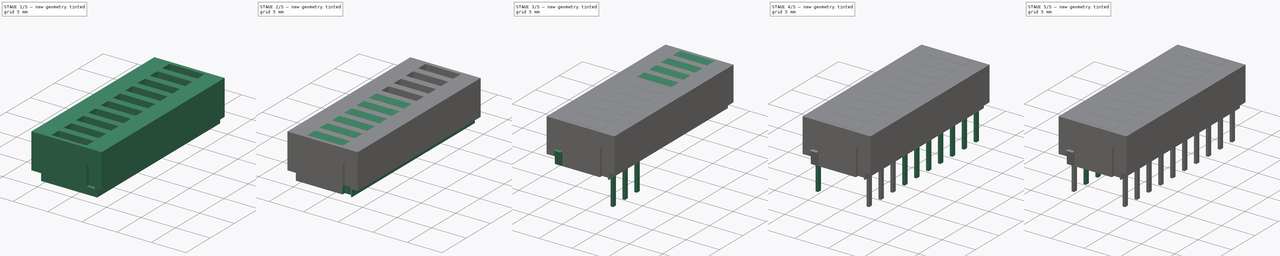
[diagram: build sequence overview — one tinted view per stage of 5, left to right]
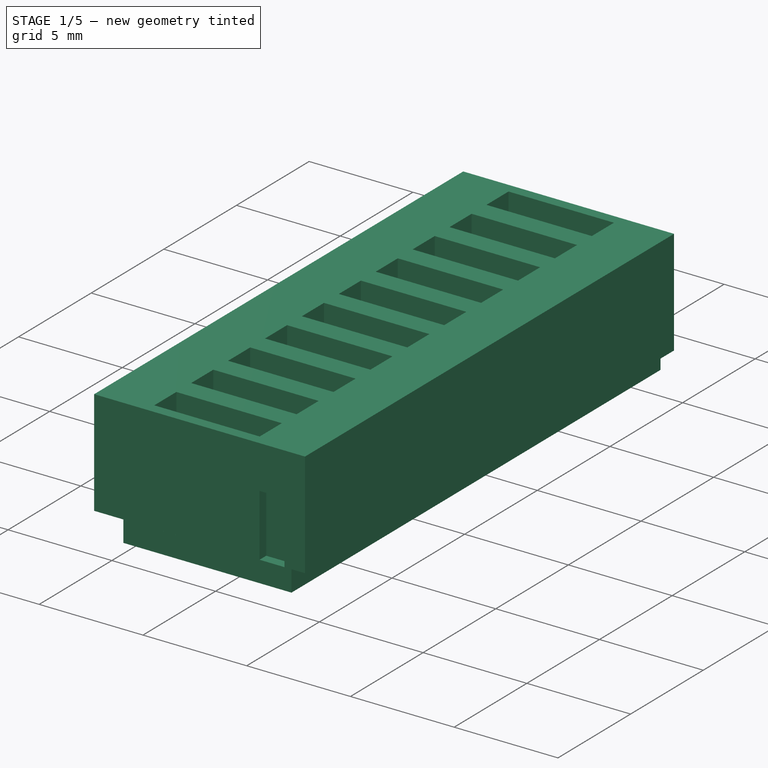
[diagram: stage 1 of 5 — iso view after this stage's code; geometry added in this stage tinted green]
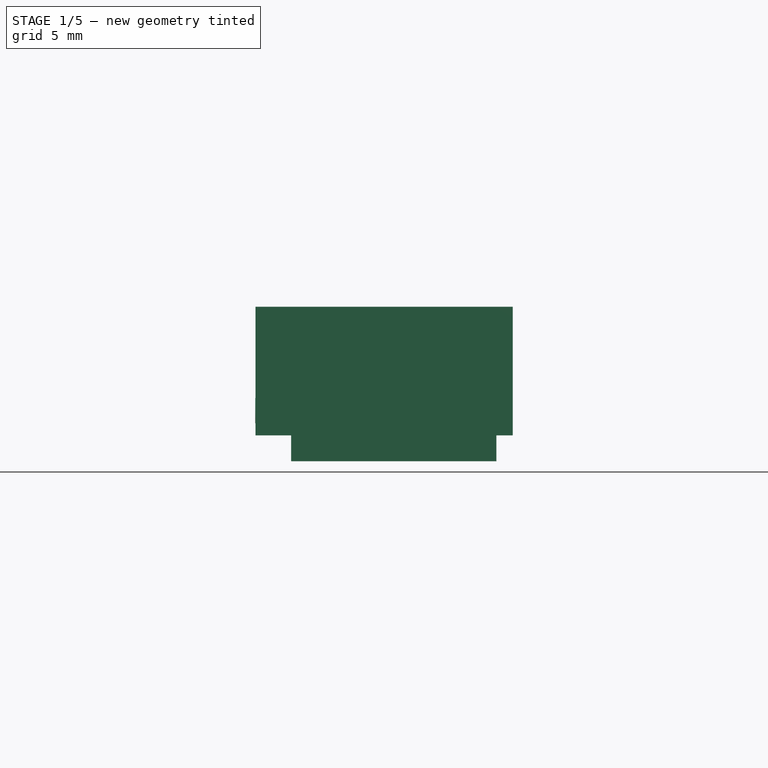
[diagram: stage 1 of 5 — front view after this stage's code; geometry added in this stage tinted green]
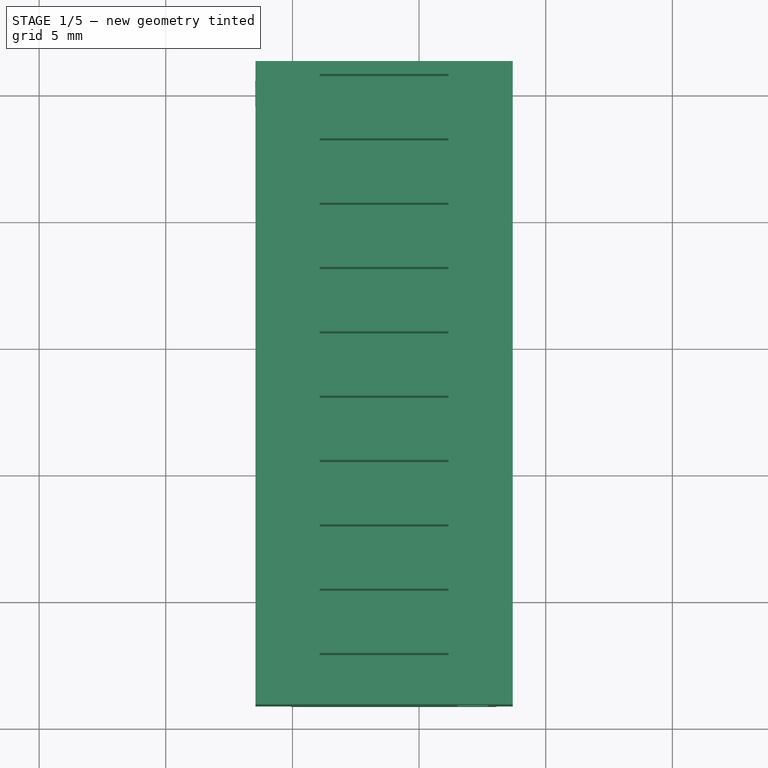
[diagram: stage 1 of 5 — top view after this stage's code; geometry added in this stage tinted green]
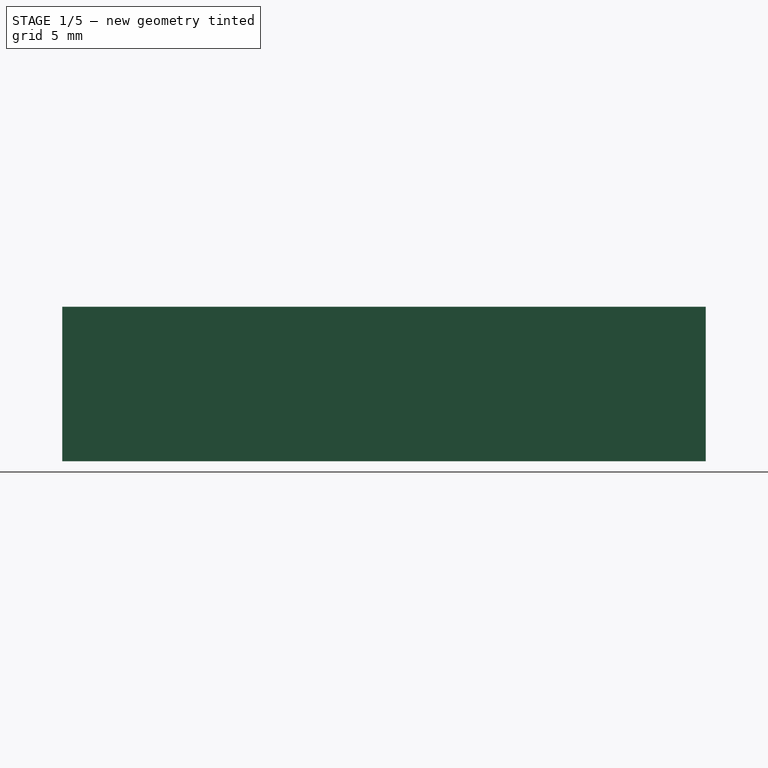
[diagram: stage 1 of 5 — right view after this stage's code; geometry added in this stage tinted green]
FCSTD DOCUMENT  (FreeCAD 0.17R11223 (Git))
Label: HDSP-48XX_8_1
License: All rights reserved
LicenseURL: http://en.wikipedia.org/wiki/All_rights_reserved
objects: Part::Box×37, Part::Cut×4, App::DocumentObjectGroup×2, Sketcher::SketchObject×1, PartDesign::Pad×1, PartDesign::Body×1, Part::Cylinder×1
note: 46 computed .brp shape members not serialized (recipe doc carries the construction recipe); baked Part::Feature solids carry a one-line shape summary decoded from their .brp

FEATURE [Sketcher::SketchObject] Sketch
  MapMode = 5
  Support = -> [XY_Plane]
  sketch-geometry (44):
    g0: LineSegment StartX=-1.27 StartY=1.27 StartZ=0 EndX=8.89 EndY=1.27 EndZ=0
    g1: LineSegment StartX=8.89 StartY=1.27 StartZ=0 EndX=8.89 EndY=-24.13 EndZ=0
    g2: LineSegment StartX=8.89 StartY=-24.13 StartZ=0 EndX=-1.27 EndY=-24.13 EndZ=0
    g3: LineSegment StartX=-1.27 StartY=-24.13 StartZ=0 EndX=-1.27 EndY=1.27 EndZ=0
    g4: LineSegment StartX=1.27 StartY=0.76 StartZ=0 EndX=6.35 EndY=0.76 EndZ=0
    g5: LineSegment StartX=6.35 StartY=0.76 StartZ=0 EndX=6.35 EndY=-0.76 EndZ=0
    g6: LineSegment StartX=6.35 StartY=-0.76 StartZ=0 EndX=1.27 EndY=-0.76 EndZ=0
    g7: LineSegment StartX=1.27 StartY=-0.76 StartZ=0 EndX=1.27 EndY=0.76 EndZ=0
    g8: LineSegment StartX=1.27 StartY=-1.78 StartZ=0 EndX=6.35 EndY=-1.78 EndZ=0
    g9: LineSegment StartX=6.35 StartY=-1.78 StartZ=0 EndX=6.35 EndY=-3.3 EndZ=0
    g10: LineSegment StartX=6.35 StartY=-3.3 StartZ=0 EndX=1.27 EndY=-3.3 EndZ=0
    g11: LineSegment StartX=1.27 StartY=-3.3 StartZ=0 EndX=1.27 EndY=-1.78 EndZ=0
    g12: LineSegment StartX=1.27 StartY=-4.32 StartZ=0 EndX=6.35 EndY=-4.32 EndZ=0
    g13: LineSegment StartX=6.35 StartY=-4.32 StartZ=0 EndX=6.35 EndY=-5.84 EndZ=0
    g14: LineSegment StartX=6.35 StartY=-5.84 StartZ=0 EndX=1.27 EndY=-5.84 EndZ=0
    g15: LineSegment StartX=1.27 StartY=-5.84 StartZ=0 EndX=1.27 EndY=-4.32 EndZ=0
    g16: LineSegment StartX=1.27 StartY=-8.38 StartZ=0 EndX=6.35 EndY=-8.38 EndZ=0
    g17: LineSegment StartX=6.35 StartY=-8.38 StartZ=0 EndX=6.35 EndY=-6.86 EndZ=0
    g18: LineSegment StartX=6.35 StartY=-6.86 StartZ=0 EndX=1.27 EndY=-6.86 EndZ=0
    g19: LineSegment StartX=1.27 StartY=-6.86 StartZ=0 EndX=1.27 EndY=-8.38 EndZ=0
    g20: LineSegment StartX=1.27 StartY=-9.4 StartZ=0 EndX=6.35 EndY=-9.4 EndZ=0
    g21: LineSegment StartX=6.35 StartY=-9.4 StartZ=0 EndX=6.35 EndY=-10.92 EndZ=0
    g22: LineSegment StartX=6.35 StartY=-10.92 StartZ=0 EndX=1.27 EndY=-10.92 EndZ=0
    g23: LineSegment StartX=1.27 StartY=-10.92 StartZ=0 EndX=1.27 EndY=-9.4 EndZ=0
    g24: LineSegment StartX=1.27 StartY=-11.94 StartZ=0 EndX=6.35 EndY=-11.94 EndZ=0
    g25: LineSegment StartX=6.35 StartY=-11.94 StartZ=0 EndX=6.35 EndY=-13.46 EndZ=0
    g26: LineSegment StartX=6.35 StartY=-13.46 StartZ=0 EndX=1.27 EndY=-13.46 EndZ=0
    g27: LineSegment StartX=1.27 StartY=-13.46 StartZ=0 EndX=1.27 EndY=-11.94 EndZ=0
    g28: LineSegment StartX=1.27 StartY=-14.48 StartZ=0 EndX=6.35 EndY=-14.48 EndZ=0
    g29: LineSegment StartX=6.35 StartY=-14.48 StartZ=0 EndX=6.35 EndY=-16 EndZ=0
    g30: LineSegment StartX=6.35 StartY=-16 StartZ=0 EndX=1.27 EndY=-16 EndZ=0
    g31: LineSegment StartX=1.27 StartY=-16 StartZ=0 EndX=1.27 EndY=-14.48 EndZ=0
    g32: LineSegment StartX=1.27 StartY=-17.02 StartZ=0 EndX=6.35 EndY=-17.02 EndZ=0
    g33: LineSegment StartX=6.35 StartY=-17.02 StartZ=0 EndX=6.35 EndY=-18.54 EndZ=0
    g34: LineSegment StartX=6.35 StartY=-18.54 StartZ=0 EndX=1.27 EndY=-18.54 EndZ=0
    g35: LineSegment StartX=1.27 StartY=-18.54 StartZ=0 EndX=1.27 EndY=-17.02 EndZ=0
    g36: LineSegment StartX=1.27 StartY=-19.56 StartZ=0 EndX=6.35 EndY=-19.56 EndZ=0
    g37: LineSegment StartX=6.35 StartY=-19.56 StartZ=0 EndX=6.35 EndY=-21.08 EndZ=0
    g38: LineSegment StartX=6.35 StartY=-21.08 StartZ=0 EndX=1.27 EndY=-21.08 EndZ=0
    g39: LineSegment StartX=1.27 StartY=-21.08 StartZ=0 EndX=1.27 EndY=-19.56 EndZ=0
    g40: LineSegment StartX=1.27 StartY=-22.1 StartZ=0 EndX=6.35 EndY=-22.1 EndZ=0
    g41: LineSegment StartX=6.35 StartY=-22.1 StartZ=0 EndX=6.35 EndY=-23.62 EndZ=0
    g42: LineSegment StartX=6.35 StartY=-23.62 StartZ=0 EndX=1.27 EndY=-23.62 EndZ=0
    g43: LineSegment StartX=1.27 StartY=-23.62 StartZ=0 EndX=1.27 EndY=-22.1 EndZ=0
  constraints (132):
    c: Coincident(g0,g1)
    c: Coincident(g1,g2)
    c: Coincident(g2,g3)
    c: Coincident(g3,g0)
    c: Horizontal(g0)
    c: Horizontal(g2)
    c: Vertical(g1)
    c: Vertical(g3)
    c: DistanceX(g0,g0) = 10.16
    c: DistanceY(g1,g0) = 25.4
    c: Coincident(g4,g5)
    c: Coincident(g5,g6)
    c: Coincident(g6,g7)
    c: Coincident(g7,g4)
    c: Horizontal(g4)
    c: Horizontal(g6)
    c: Vertical(g5)
    c: Vertical(g7)
    c: DistanceY(g5,g4) = 1.52
    c: DistanceX(g4,g4) = 5.08
    c: DistanceX(g0,g4) = 2.54
    c: DistanceX(g0,g-1) = 1.27
    c: DistanceY(g-1,g0) = 1.27
    c: DistanceY(g4,g0) = 0.51
    c: Coincident(g8,g9)
    c: Coincident(g9,g10)
    c: Coincident(g10,g11)
    c: Coincident(g11,g8)
    c: Horizontal(g8)
    c: Horizontal(g10)
    c: Vertical(g9)
    c: Vertical(g11)
    c: Coincident(g12,g13)
    c: Coincident(g13,g14)
    c: Coincident(g14,g15)
    c: Coincident(g15,g12)
    c: Horizontal(g12)
    c: Horizontal(g14)
    c: Vertical(g13)
    c: Vertical(g15)
    c: Coincident(g16,g17)
    c: Coincident(g17,g18)
    c: Coincident(g18,g19)
    c: Coincident(g19,g16)
    c: Horizontal(g16)
    c: Horizontal(g18)
    c: Vertical(g17)
    c: Vertical(g19)
    c: Coincident(g20,g21)
    c: Coincident(g21,g22)
    c: Coincident(g22,g23)
    c: Coincident(g23,g20)
    c: Horizontal(g20)
    c: Horizontal(g22)
    c: Vertical(g21)
    c: Vertical(g23)
    c: Coincident(g24,g25)
    c: Coincident(g25,g26)
    c: Coincident(g26,g27)
    c: Coincident(g27,g24)
    c: Horizontal(g24)
    c: Horizontal(g26)
    c: Vertical(g25)
    c: Vertical(g27)
    c: Coincident(g28,g29)
    c: Coincident(g29,g30)
    c: Coincident(g30,g31)
    c: Coincident(g31,g28)
    c: Horizontal(g28)
    c: Horizontal(g30)
    c: Vertical(g29)
    c: Vertical(g31)
    c: Coincident(g32,g33)
    c: Coincident(g33,g34)
    c: Coincident(g34,g35)
    c: Coincident(g35,g32)
    c: Horizontal(g32)
    c: Horizontal(g34)
    c: Vertical(g33)
    c: Vertical(g35)
    c: Coincident(g36,g37)
    c: Coincident(g37,g38)
    c: Coincident(g38,g39)
    c: Coincident(g39,g36)
    c: Horizontal(g36)
    c: Horizontal(g38)
    c: Vertical(g37)
    c: Vertical(g39)
    c: Coincident(g40,g41)
    c: Coincident(g41,g42)
    c: Coincident(g42,g43)
    c: Coincident(g43,g40)
    c: Horizontal(g40)
    c: Horizontal(g42)
    c: Vertical(g41)
    c: Vertical(g43)
    c: DistanceY(g40,g36) = 2.54
    c: DistanceY(g41,g40) = 1.52
    c: DistanceX(g40,g40) = 5.08
    c: DistanceX(g36,g36) = 5.08
    c: DistanceY(g37,g36) = 1.52
    c: DistanceX(g40,g36) = 0
    c: DistanceX(g32,g36) = 0
    c: DistanceY(g36,g32) = 2.54
    c: DistanceY(g33,g32) = 1.52
    c: DistanceX(g32,g32) = 5.08
    c: DistanceX(g28,g32) = 0
    c: DistanceY(g32,g28) = 2.54
    c: DistanceY(g29,g28) = 1.52
    c: DistanceX(g28,g28) = 5.08
    c: DistanceX(g24,g28) = 0
    c: DistanceY(g28,g24) = 2.54
    c: DistanceY(g25,g24) = 1.52
    c: DistanceX(g24,g24) = 5.08
    c: DistanceY(g24,g20) = 2.54
    c: DistanceX(g20,g24) = 0
    c: DistanceY(g21,g20) = 1.52
    c: DistanceX(g20,g20) = 5.08
    c: DistanceX(g16,g20) = 0
    c: DistanceY(g16,g17) = 1.52
    c: DistanceX(g18,g17) = 5.08
    c: DistanceX(g12,g18) = 0
    c: DistanceY(g18,g12) = 2.54
    c: DistanceY(g13,g12) = 1.52
    c: DistanceX(g12,g12) = 5.08
    c: DistanceY(g9,g8) = 1.52
    c: DistanceX(g8,g8) = 5.08
    c: DistanceX(g8,g12) = 0
    c: DistanceY(g12,g8) = 2.54
    c: DistanceX(g4,g8) = 0
    c: DistanceY(g8,g4) = 2.54
    c: DistanceY(g20,g18) = 2.54
FEATURE [PartDesign::Pad] Pad
  Length = 5.08
  Length2 = 100
  Profile = -> Sketch
  Type = 0
FEATURE [PartDesign::Body] Body
  Group = -> [Sketch,Pad]
  Origin = -> BodyOrigin
  Placement = pos=(0,0,1.02) rot=(0,0,1;0rad)
  Tip = -> Pad
FEATURE [Part::Box] Box  label="Underdel"
  AttacherType = Attacher::AttachEngine3D
  Height = 1.02
  Length = 8.1
  Placement = pos=(-0.05,-24.13,0) rot=(0,0,1;0rad)
  Width = 25.4
FEATURE [Part::Box] Box003  label="Slits1"
  AttacherType = Attacher::AttachEngine3D
  Height = 1.02
  Length = 1.2
  Placement = pos=(0.1,0.8,0) rot=(0,0,1;0rad)
  Width = 0.5
FEATURE [Part::Box] Box035  label="Slits003"
  AttacherType = Attacher::AttachEngine3D
  Height = 4
  Length = 1.2
  Placement = pos=(0.1,0.8,0) rot=(0,0,1;0rad)
  Width = 0.5
FEATURE [Part::Cut] Cut
  Base = -> Box
  Tool = -> Box003
FEATURE [Part::Box] Box036  label="Slits004"
  AttacherType = Attacher::AttachEngine3D
  Height = 3
  Length = 1.2
  Placement = pos=(6.7,-24.17,0) rot=(0,0,1;0rad)
  Width = 0.5
FEATURE [Part::Cut] Cut001
  Base = -> Pad
  Placement = pos=(0,0,1.02) rot=(0,0,1;0rad)
  Tool = -> Box036
FEATURE [Part::Cut] Cut003
  Base = -> Cut001
  Placement = pos=(-0.19,0,0) rot=(0,0,1;0rad)
  Tool = -> Box035
FEATURE [App::DocumentObjectGroup] Grupp001  label="Klackar"
  Group = -> [Box001,Box002,Cut002,Cut003]
FEATURE [Part::Cylinder] Cylinder
  Angle = 360
  AttacherType = Attacher::AttachEngine3D
  Height = 1
  Placement = pos=(-1.47,0.05,2) rot=(0,1,0;1.5708rad)
  Radius = 0.5
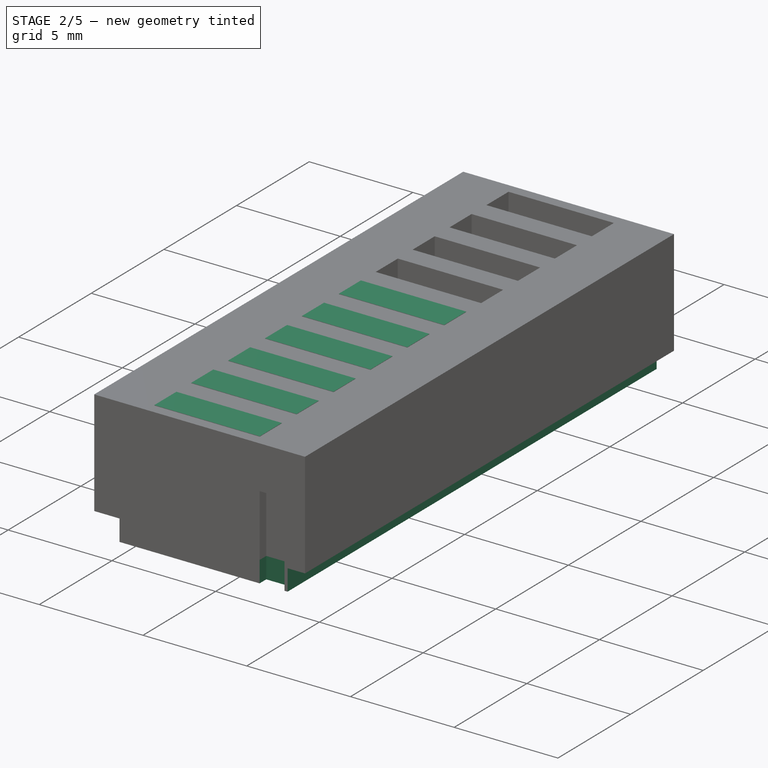
[diagram: stage 2 of 5 — iso view after this stage's code; geometry added in this stage tinted green]
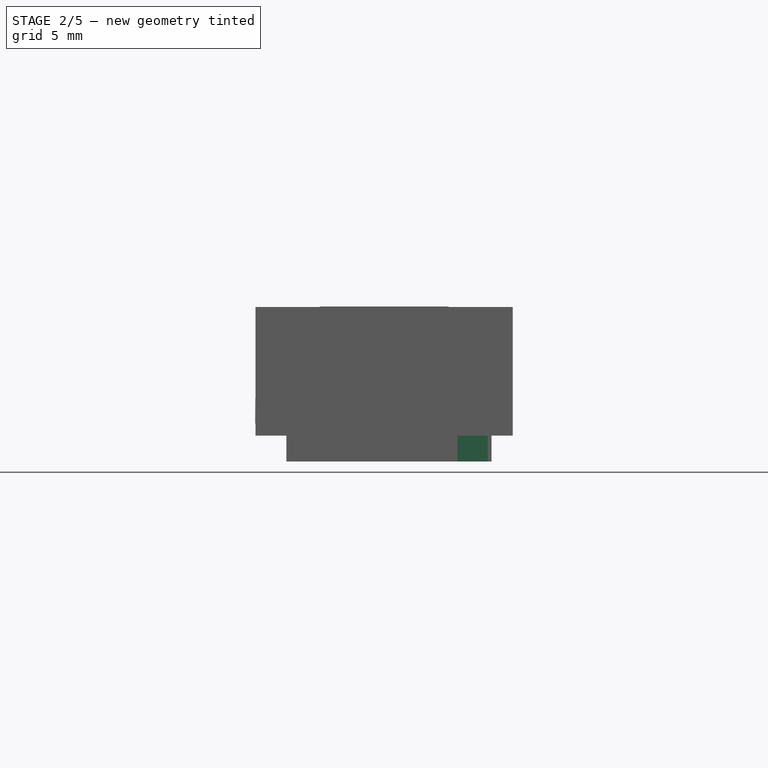
[diagram: stage 2 of 5 — front view after this stage's code; geometry added in this stage tinted green]
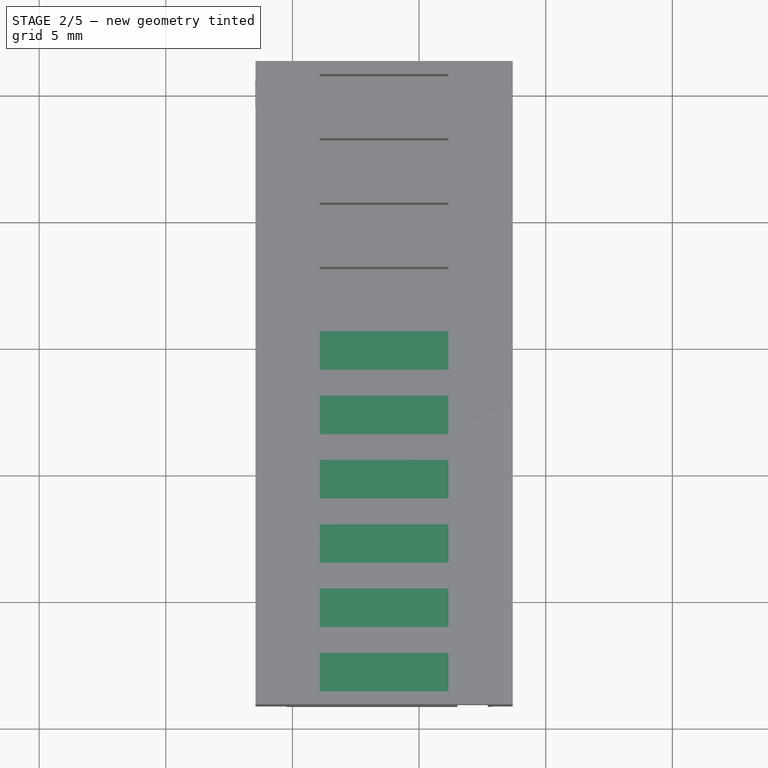
[diagram: stage 2 of 5 — top view after this stage's code; geometry added in this stage tinted green]
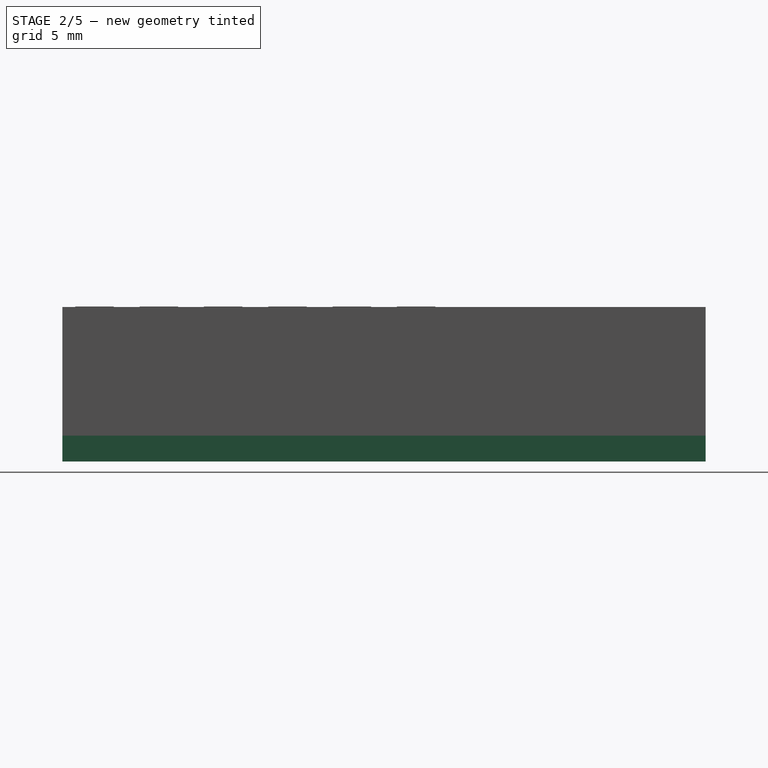
[diagram: stage 2 of 5 — right view after this stage's code; geometry added in this stage tinted green]
FEATURE [Part::Box] Box004  label="Slits2"
  AttacherType = Attacher::AttachEngine3D
  Height = 1.02
  Length = 1.2
  Placement = pos=(6.7,-24.17,0) rot=(0,0,1;0rad)
  Width = 0.5
FEATURE [Part::Box] Box029  label="LED005"
  AttacherType = Attacher::AttachEngine3D
  Height = 5.1
  Length = 5.08
  Placement = pos=(1.08,-10.92,1.02) rot=(0,0,1;0rad)
  Width = 1.52
FEATURE [Part::Box] Box030  label="LED006"
  AttacherType = Attacher::AttachEngine3D
  Height = 5.1
  Length = 5.08
  Placement = pos=(1.08,-13.46,1.02) rot=(0,0,1;0rad)
  Width = 1.52
FEATURE [Part::Box] Box031  label="LED007"
  AttacherType = Attacher::AttachEngine3D
  Height = 5.1
  Length = 5.08
  Placement = pos=(1.08,-16,1.02) rot=(0,0,1;0rad)
  Width = 1.52
FEATURE [Part::Box] Box032  label="LED008"
  AttacherType = Attacher::AttachEngine3D
  Height = 5.1
  Length = 5.08
  Placement = pos=(1.08,-18.54,1.02) rot=(0,0,1;0rad)
  Width = 1.52
FEATURE [Part::Box] Box033  label="LED009"
  AttacherType = Attacher::AttachEngine3D
  Height = 5.1
  Length = 5.08
  Placement = pos=(1.08,-21.08,1.02) rot=(0,0,1;0rad)
  Width = 1.52
FEATURE [Part::Box] Box034  label="LED010"
  AttacherType = Attacher::AttachEngine3D
  Height = 5.1
  Length = 5.08
  Placement = pos=(1.08,-23.62,1.02) rot=(0,0,1;0rad)
  Width = 1.52
FEATURE [Part::Cut] Cut002
  Base = -> Cut
  Placement = pos=(-0.19,0,0) rot=(0,0,1;0rad)
  Tool = -> Box004
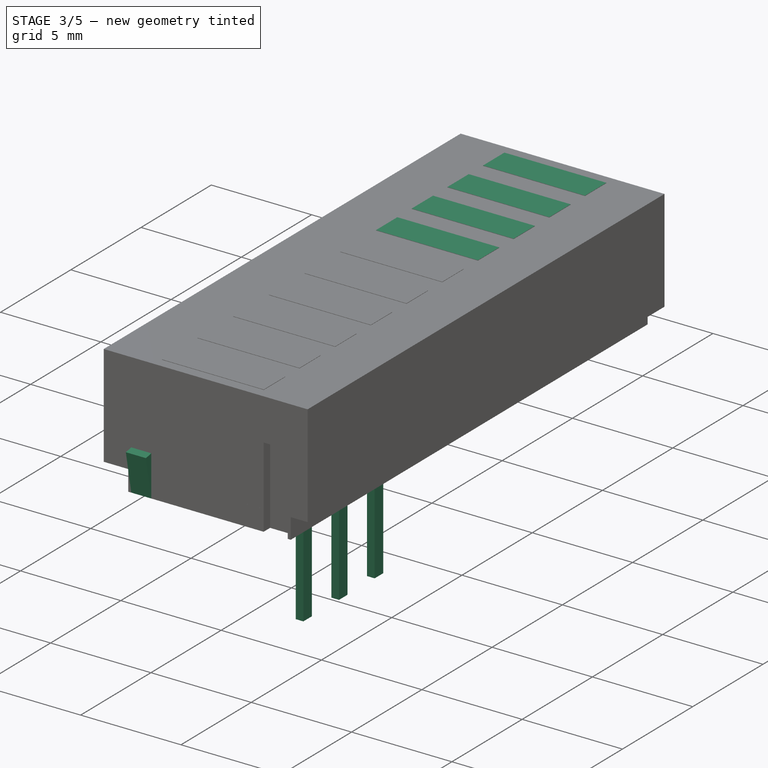
[diagram: stage 3 of 5 — iso view after this stage's code; geometry added in this stage tinted green]
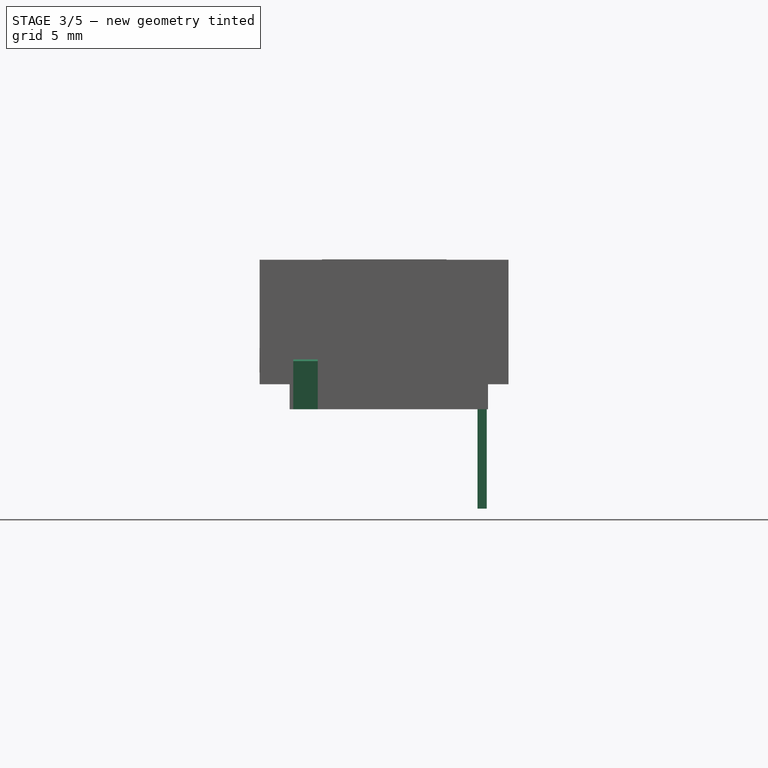
[diagram: stage 3 of 5 — front view after this stage's code; geometry added in this stage tinted green]
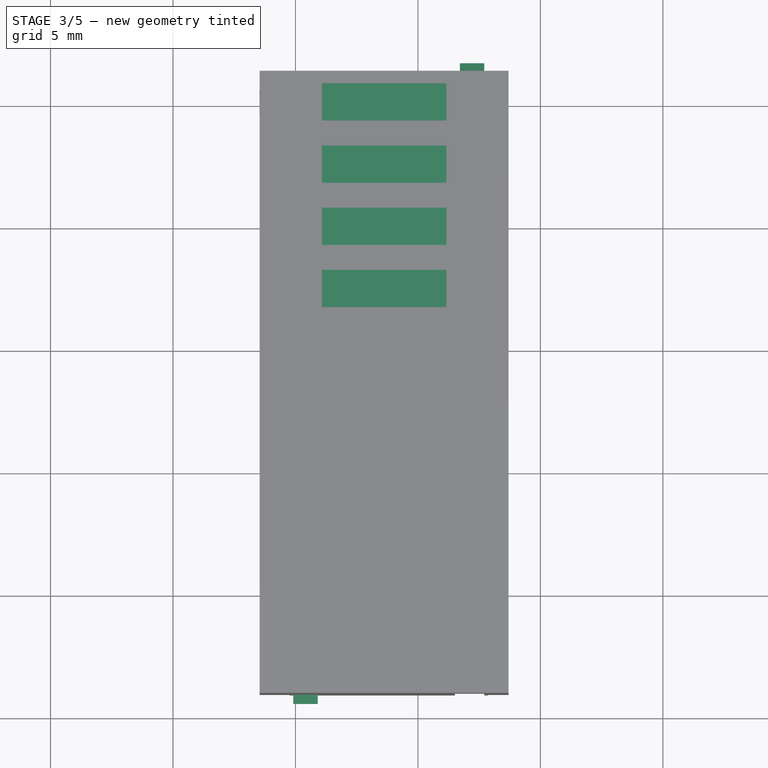
[diagram: stage 3 of 5 — top view after this stage's code; geometry added in this stage tinted green]
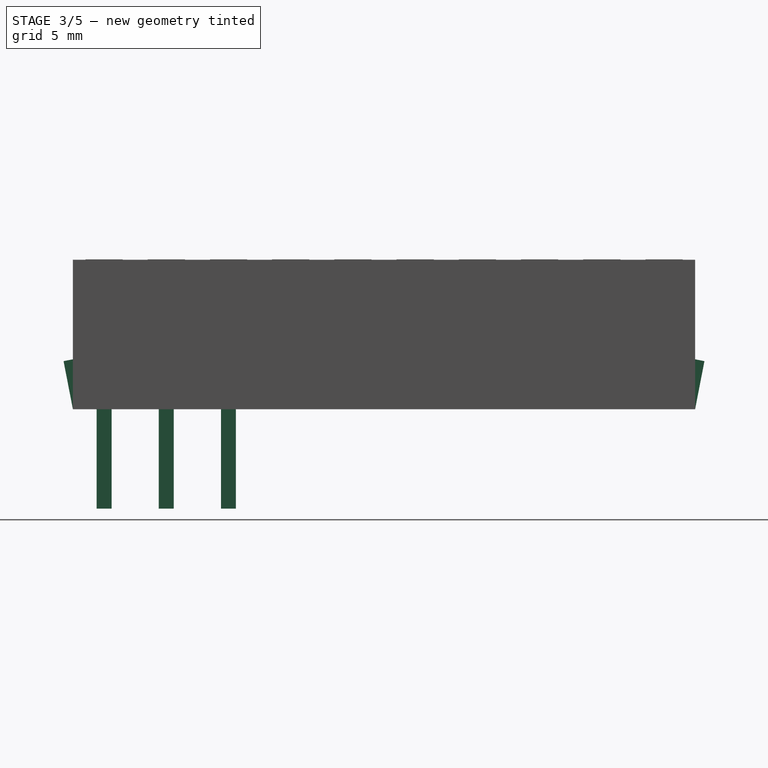
[diagram: stage 3 of 5 — right view after this stage's code; geometry added in this stage tinted green]
FEATURE [Part::Box] Box001  label="Klack1"
  AttacherType = Attacher::AttachEngine3D
  Height = 2
  Length = 1
  Placement = pos=(6.71,-0.69325,0.382) rot=(-1,0,0;0.191986rad)
  Width = 2
FEATURE [Part::Box] Box002  label="Klack2"
  AttacherType = Attacher::AttachEngine3D
  Height = 2
  Length = 1
  Placement = pos=(-0.09,-24.13,0) rot=(1,0,0;0.191986rad)
  Width = 2
FEATURE [Part::Box] Box022  label="Pin018"
  AttacherType = Attacher::AttachEngine3D
  Height = 4.06
  Length = 0.38
  Placement = pos=(7.43,-18.085,-4.06) rot=(0,0,1;0rad)
  Width = 0.61
FEATURE [Part::Box] Box023  label="Pin019"
  AttacherType = Attacher::AttachEngine3D
  Height = 4.06
  Length = 0.38
  Placement = pos=(7.43,-20.625,-4.06) rot=(0,0,1;0rad)
  Width = 0.61
FEATURE [Part::Box] Box024  label="Pin020"
  AttacherType = Attacher::AttachEngine3D
  Height = 4.06
  Length = 0.38
  Placement = pos=(7.43,-23.16,-4.06) rot=(0,0,1;0rad)
  Width = 0.61
FEATURE [App::DocumentObjectGroup] Grupp  label="Pinnar"
  Group = -> [Box005,Box006,Box007,Box008,Box009,Box010,Box011,Box012,Box013,Box014,Box015,Box016,Box017,Box018,Box019,Box020,Box021,Box022,Box023,Box024]
FEATURE [Part::Box] Box025  label="LED001"
  AttacherType = Attacher::AttachEngine3D
  Height = 5.1
  Length = 5.08
  Placement = pos=(1.08,-0.76,1.02) rot=(0,0,1;0rad)
  Width = 1.52
FEATURE [Part::Box] Box026  label="LED002"
  AttacherType = Attacher::AttachEngine3D
  Height = 5.1
  Length = 5.08
  Placement = pos=(1.08,-3.3,1.02) rot=(0,0,1;0rad)
  Width = 1.52
FEATURE [Part::Box] Box027  label="LED003"
  AttacherType = Attacher::AttachEngine3D
  Height = 5.1
  Length = 5.08
  Placement = pos=(1.08,-5.84,1.02) rot=(0,0,1;0rad)
  Width = 1.52
FEATURE [Part::Box] Box028  label="LED004"
  AttacherType = Attacher::AttachEngine3D
  Height = 5.1
  Length = 5.08
  Placement = pos=(1.08,-8.38,1.02) rot=(0,0,1;0rad)
  Width = 1.52
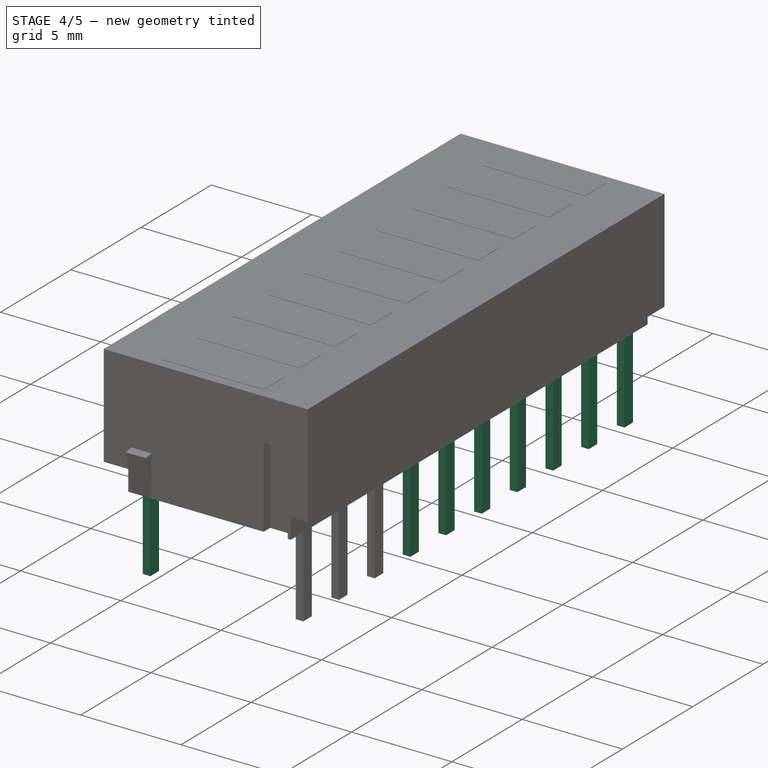
[diagram: stage 4 of 5 — iso view after this stage's code; geometry added in this stage tinted green]
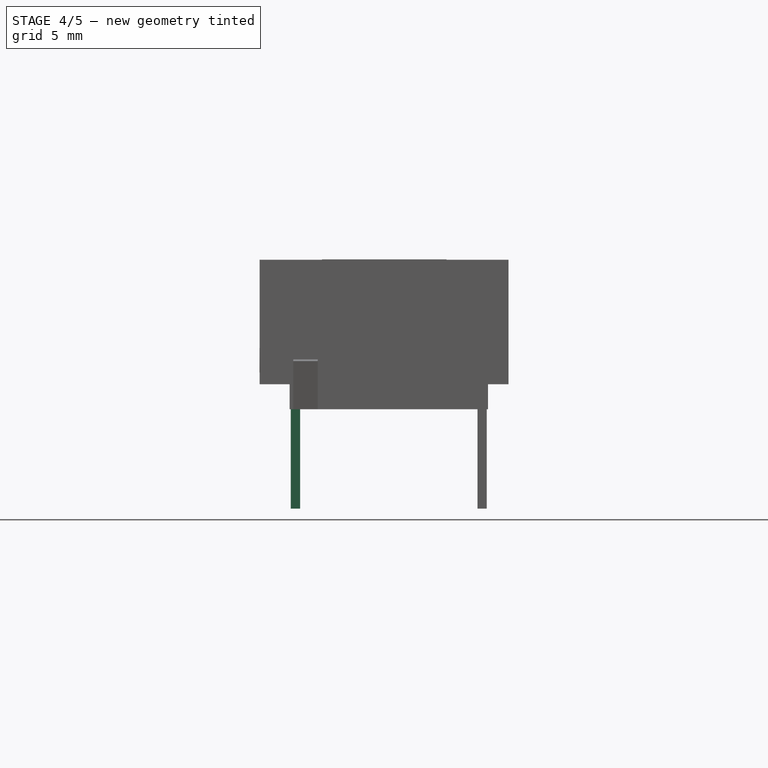
[diagram: stage 4 of 5 — front view after this stage's code; geometry added in this stage tinted green]
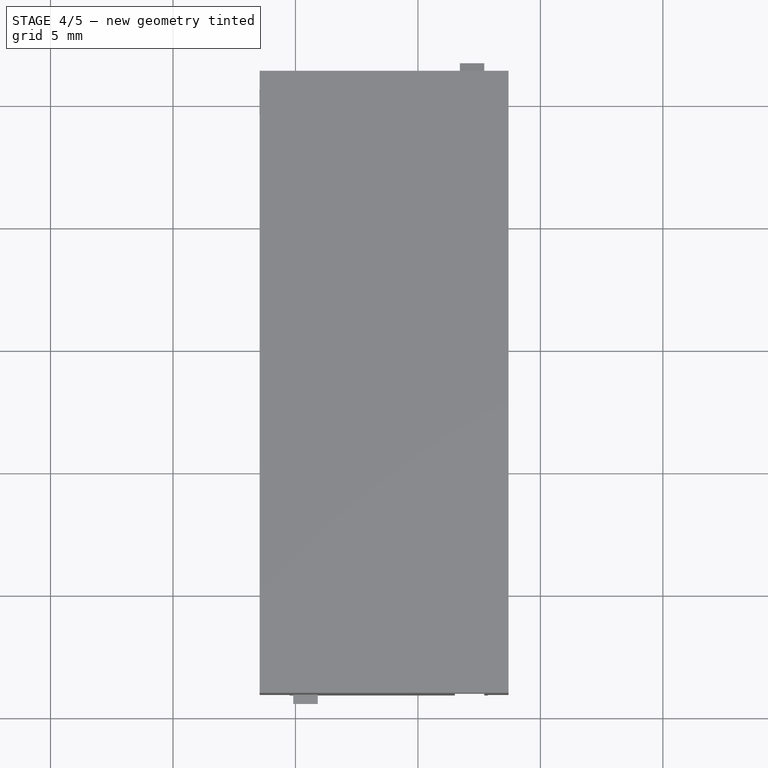
[diagram: stage 4 of 5 — top view after this stage's code; geometry added in this stage tinted green]
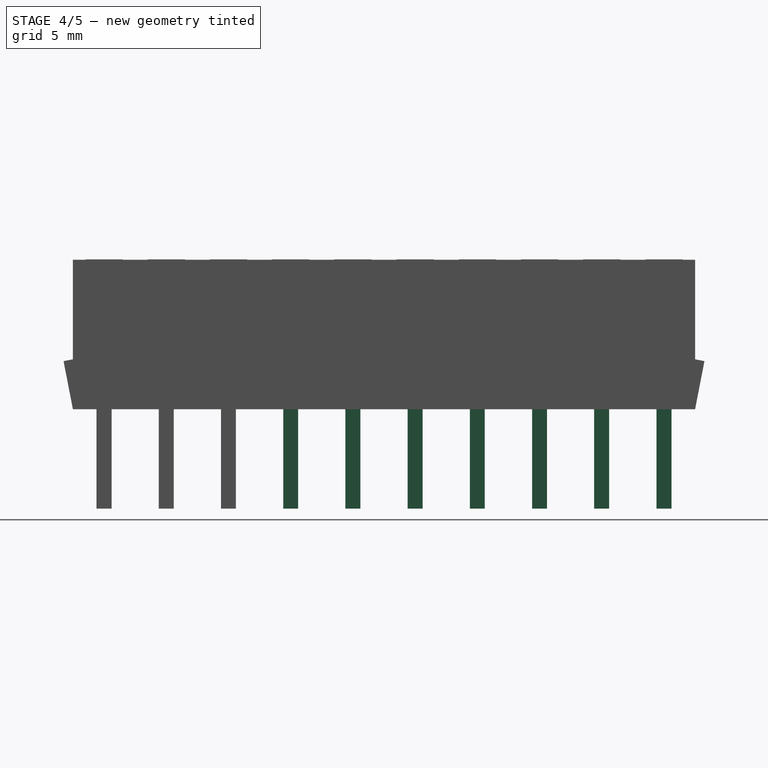
[diagram: stage 4 of 5 — right view after this stage's code; geometry added in this stage tinted green]
FEATURE [Part::Box] Box014  label="Pin010"
  AttacherType = Attacher::AttachEngine3D
  Height = 4.06
  Length = 0.38
  Placement = pos=(-0.19,-23.165,-4.06) rot=(0,0,1;0rad)
  Width = 0.61
FEATURE [Part::Box] Box015  label="Pin011"
  AttacherType = Attacher::AttachEngine3D
  Height = 4.06
  Length = 0.38
  Placement = pos=(7.43,-0.305,-4.06) rot=(0,0,1;0rad)
  Width = 0.61
FEATURE [Part::Box] Box016  label="Pin012"
  AttacherType = Attacher::AttachEngine3D
  Height = 4.06
  Length = 0.38
  Placement = pos=(7.43,-2.85,-4.06) rot=(0,0,1;0rad)
  Width = 0.61
FEATURE [Part::Box] Box017  label="Pin013"
  AttacherType = Attacher::AttachEngine3D
  Height = 4.06
  Length = 0.38
  Placement = pos=(7.43,-5.385,-4.06) rot=(0,0,1;0rad)
  Width = 0.61
FEATURE [Part::Box] Box018  label="Pin014"
  AttacherType = Attacher::AttachEngine3D
  Height = 4.06
  Length = 0.38
  Placement = pos=(7.43,-7.925,-4.06) rot=(0,0,1;0rad)
  Width = 0.61
FEATURE [Part::Box] Box019  label="Pin015"
  AttacherType = Attacher::AttachEngine3D
  Height = 4.06
  Length = 0.38
  Placement = pos=(7.43,-10.465,-4.06) rot=(0,0,1;0rad)
  Width = 0.61
FEATURE [Part::Box] Box020  label="Pin016"
  AttacherType = Attacher::AttachEngine3D
  Height = 4.06
  Length = 0.38
  Placement = pos=(7.43,-13.005,-4.06) rot=(0,0,1;0rad)
  Width = 0.61
FEATURE [Part::Box] Box021  label="Pin017"
  AttacherType = Attacher::AttachEngine3D
  Height = 4.06
  Length = 0.38
  Placement = pos=(7.43,-15.545,-4.06) rot=(0,0,1;0rad)
  Width = 0.61
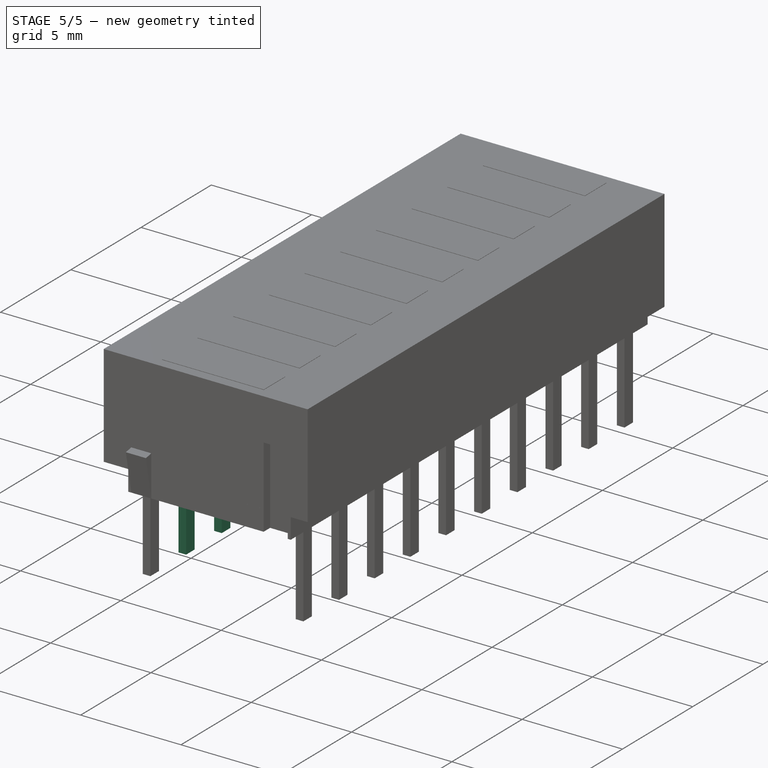
[diagram: stage 5 of 5 — iso view after this stage's code; geometry added in this stage tinted green]
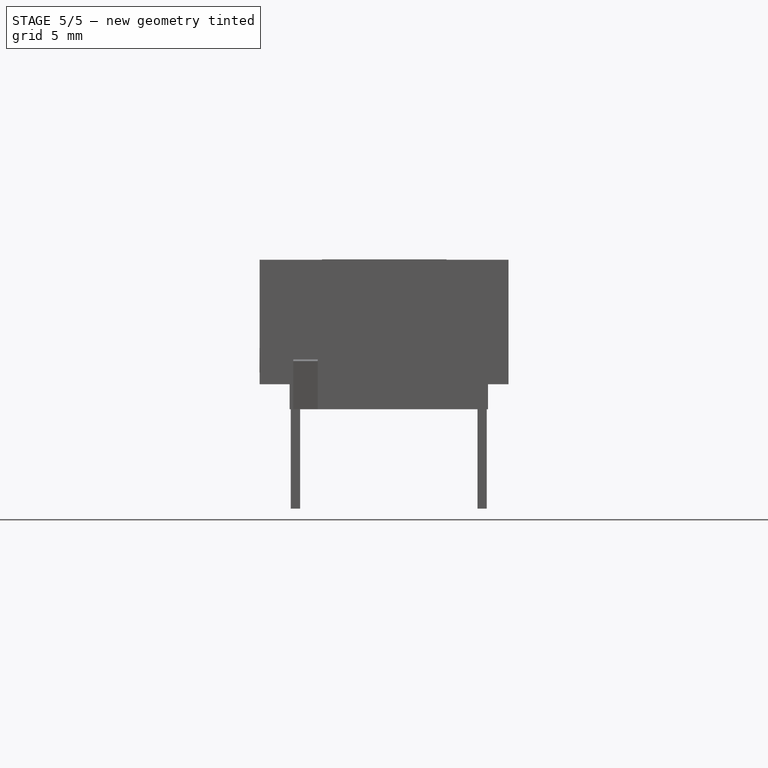
[diagram: stage 5 of 5 — front view after this stage's code; geometry added in this stage tinted green]
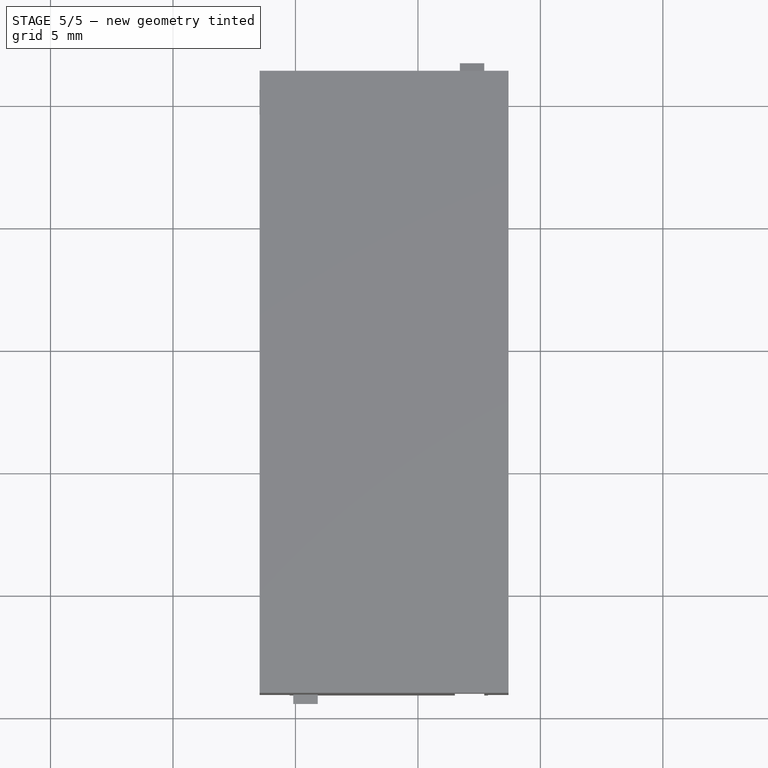
[diagram: stage 5 of 5 — top view after this stage's code; geometry added in this stage tinted green]
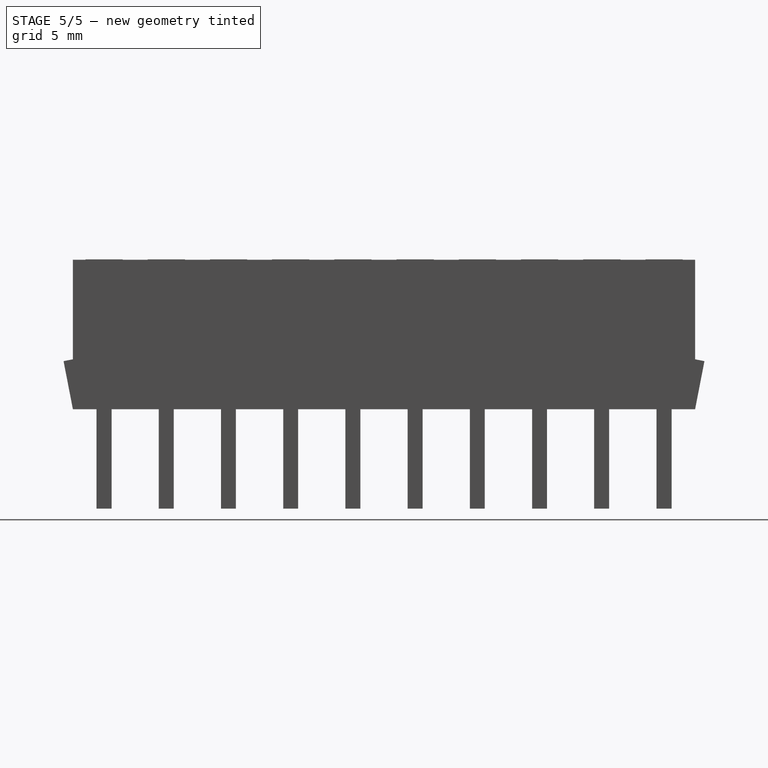
[diagram: stage 5 of 5 — right view after this stage's code; geometry added in this stage tinted green]
FEATURE [Part::Box] Box005  label="Pin001"
  AttacherType = Attacher::AttachEngine3D
  Height = 4.06
  Length = 0.38
  Placement = pos=(-0.19,-0.3,-4.06) rot=(0,0,1;0rad)
  Width = 0.61
FEATURE [Part::Box] Box006  label="Pin002"
  AttacherType = Attacher::AttachEngine3D
  Height = 4.06
  Length = 0.38
  Placement = pos=(-0.19,-2.85,-4.06) rot=(0,0,1;0rad)
  Width = 0.61
FEATURE [Part::Box] Box007  label="Pin003"
  AttacherType = Attacher::AttachEngine3D
  Height = 4.06
  Length = 0.38
  Placement = pos=(-0.19,-5.385,-4.06) rot=(0,0,1;0rad)
  Width = 0.61
FEATURE [Part::Box] Box008  label="Pin004"
  AttacherType = Attacher::AttachEngine3D
  Height = 4.06
  Length = 0.38
  Placement = pos=(-0.19,-7.925,-4.06) rot=(0,0,1;0rad)
  Width = 0.61
FEATURE [Part::Box] Box009  label="Pin005"
  AttacherType = Attacher::AttachEngine3D
  Height = 4.06
  Length = 0.38
  Placement = pos=(-0.19,-10.465,-4.06) rot=(0,0,1;0rad)
  Width = 0.61
FEATURE [Part::Box] Box010  label="Pin006"
  AttacherType = Attacher::AttachEngine3D
  Height = 4.06
  Length = 0.38
  Placement = pos=(-0.19,-13.005,-4.06) rot=(0,0,1;0rad)
  Width = 0.61
FEATURE [Part::Box] Box011  label="Pin007"
  AttacherType = Attacher::AttachEngine3D
  Height = 4.06
  Length = 0.38
  Placement = pos=(-0.19,-15.545,-4.06) rot=(0,0,1;0rad)
  Width = 0.61
FEATURE [Part::Box] Box012  label="Pin008"
  AttacherType = Attacher::AttachEngine3D
  Height = 4.06
  Length = 0.38
  Placement = pos=(-0.19,-18.085,-4.06) rot=(0,0,1;0rad)
  Width = 0.61
FEATURE [Part::Box] Box013  label="Pin009"
  AttacherType = Attacher::AttachEngine3D
  Height = 4.06
  Length = 0.38
  Placement = pos=(-0.19,-20.625,-4.06) rot=(0,0,1;0rad)
  Width = 0.61
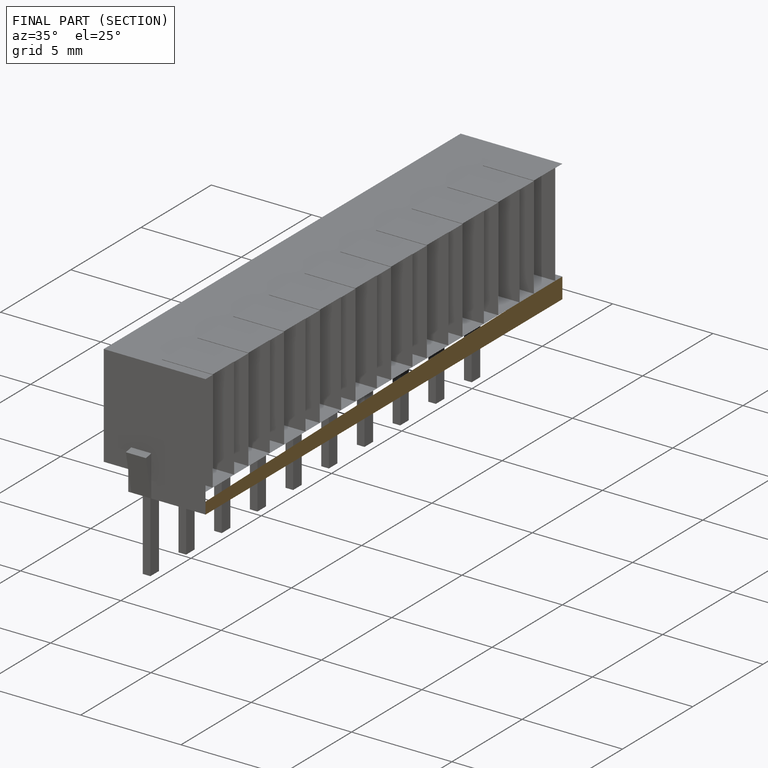
[diagram: finished part — half-section view (interior)]
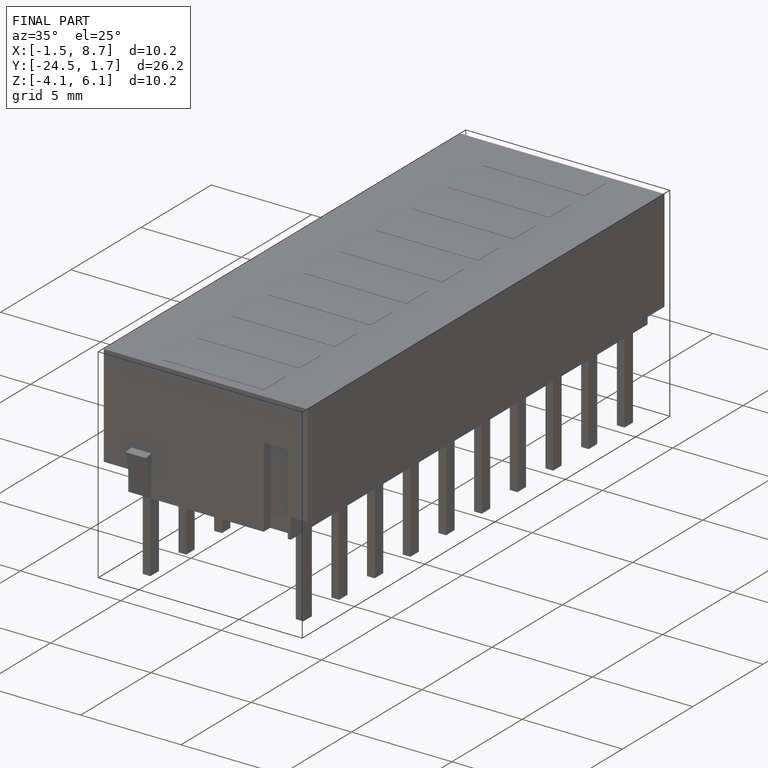
[diagram: finished part — iso view with bounding-box wireframe]
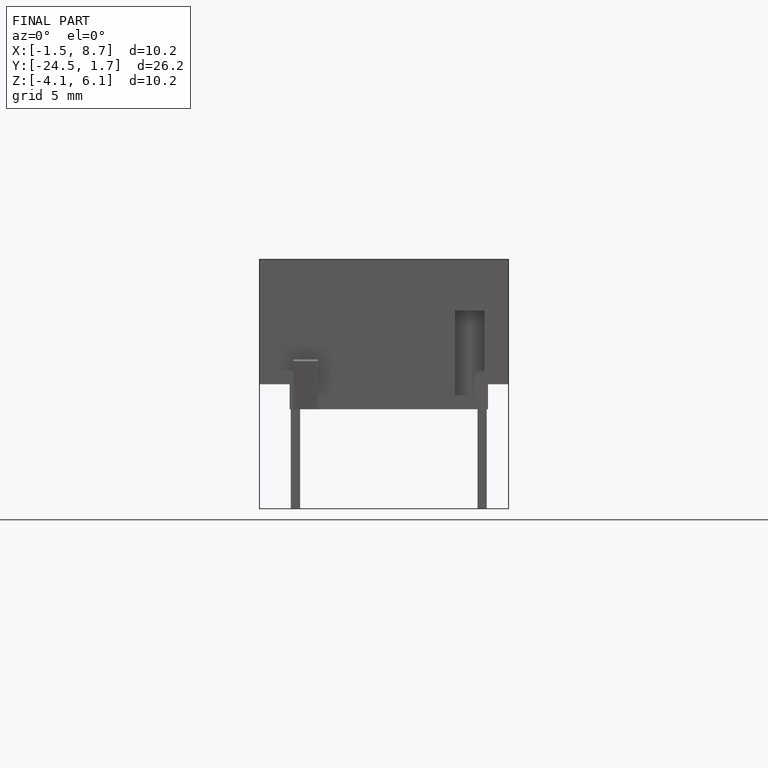
[diagram: finished part — front view with bounding-box wireframe]
